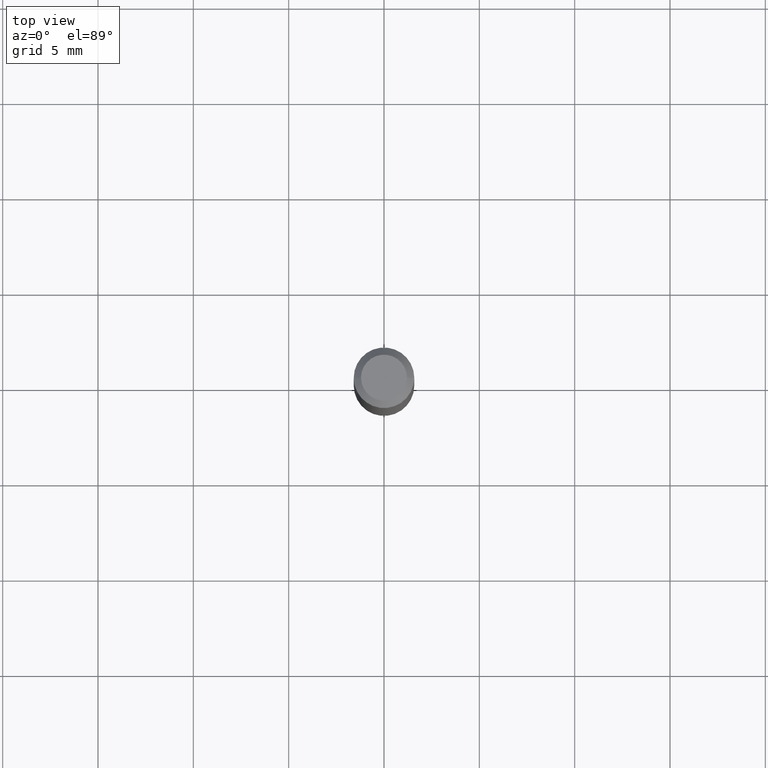
[diagram: clean part render]
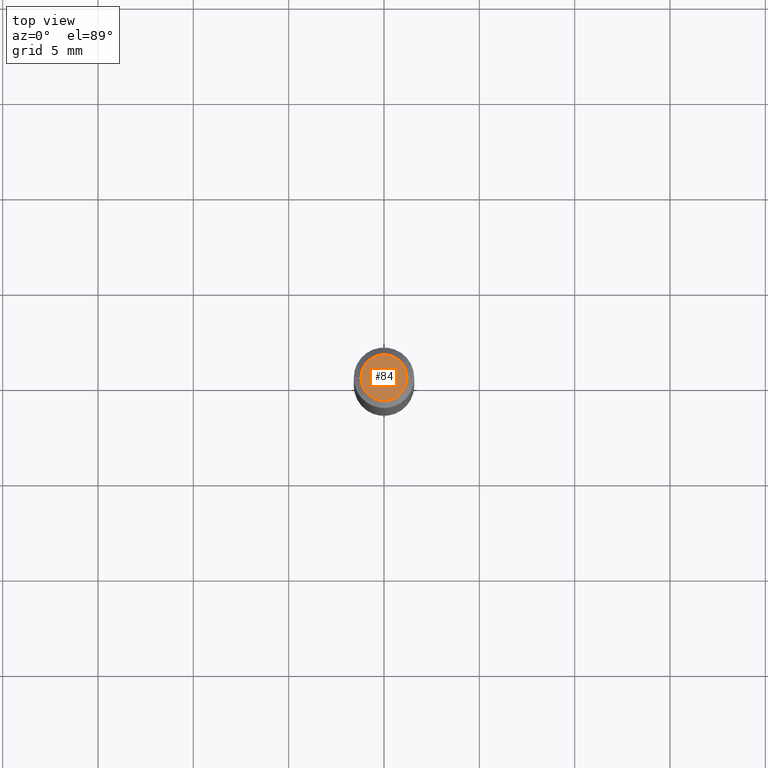
[diagram: same view with one face highlighted and labeled with its STEP entity id]
A machine part, top view. The second image highlights one B-rep face of the part: STEP entity #84.
In plain terms, the highlighted planar face has unit normal (0, -0, -1).
Its self-contained STEP definition (entity closure, byte-faithful):
#5 = CARTESIAN_POINT ( 'NONE',  ( -0.04749999999999999362, 3.578768372314211985E-16, 8.618106228653636715E-17 ) ) ;
#8 = ORIENTED_EDGE ( 'NONE', *, *, #178, .T. ) ;
#45 = VERTEX_POINT ( 'NONE', #5 ) ;
#79 = DIRECTION ( 'NONE',  ( -1.000000000000000000, 6.982962677686265922E-15, -4.876176775795935793E-29 ) ) ;
#84 = ADVANCED_FACE ( 'NONE', ( #393 ), #121, .F. ) ;
#93 = CARTESIAN_POINT ( 'NONE',  ( -2.107530995056288845E-45, 3.008995707351289501E-31, 8.618106228653878303E-17 ) ) ;
#97 = ORIENTED_EDGE ( 'NONE', *, *, #446, .T. ) ;
#121 = PLANE ( 'NONE',  #333 ) ;
#127 = CARTESIAN_POINT ( 'NONE',  ( -2.107530995056288845E-45, 3.008995707351289501E-31, 8.618106228653878303E-17 ) ) ;
#164 = DIRECTION ( 'NONE',  ( 1.000000000000000000, -6.982962677686267499E-15, 4.884662768193073002E-29 ) ) ;
#173 = AXIS2_PLACEMENT_3D ( 'NONE', #127, #206, #164 ) ;
#178 = EDGE_CURVE ( 'NONE', #253, #45, #204, .T. ) ;
#204 = CIRCLE ( 'NONE', #173, 0.04749999999999999362 ) ;
#206 = DIRECTION ( 'NONE',  ( -2.445468806185136597E-29, 3.491481338843145583E-15, 1.000000000000000000 ) ) ;
#247 = AXIS2_PLACEMENT_3D ( 'NONE', #93, #281, #381 ) ;
#249 = EDGE_LOOP ( 'NONE', ( #97, #8 ) ) ;
#253 = VERTEX_POINT ( 'NONE', #415 ) ;
#281 = DIRECTION ( 'NONE',  ( -2.445468806185136597E-29, 3.491481338843145583E-15, 1.000000000000000000 ) ) ;
#299 = CARTESIAN_POINT ( 'NONE',  ( 3.316907271900976096E-16, 0.04749999999999999362, -1.227548324517800049E-16 ) ) ;
#326 = DIRECTION ( 'NONE',  ( 2.438088387897960049E-29, -3.491481338843145188E-15, -1.000000000000000000 ) ) ;
#333 = AXIS2_PLACEMENT_3D ( 'NONE', #299, #326, #79 ) ;
#381 = DIRECTION ( 'NONE',  ( 1.000000000000000000, -6.982962677686267499E-15, 4.884662768193073002E-29 ) ) ;
#393 = FACE_OUTER_BOUND ( 'NONE', #249, .T. ) ;
#415 = CARTESIAN_POINT ( 'NONE',  ( 0.04749999999999999362, -4.035134999187576651E-16, 8.618106228654135916E-17 ) ) ;
#445 = CIRCLE ( 'NONE', #247, 0.04749999999999999362 ) ;
#446 = EDGE_CURVE ( 'NONE', #45, #253, #445, .T. ) ;